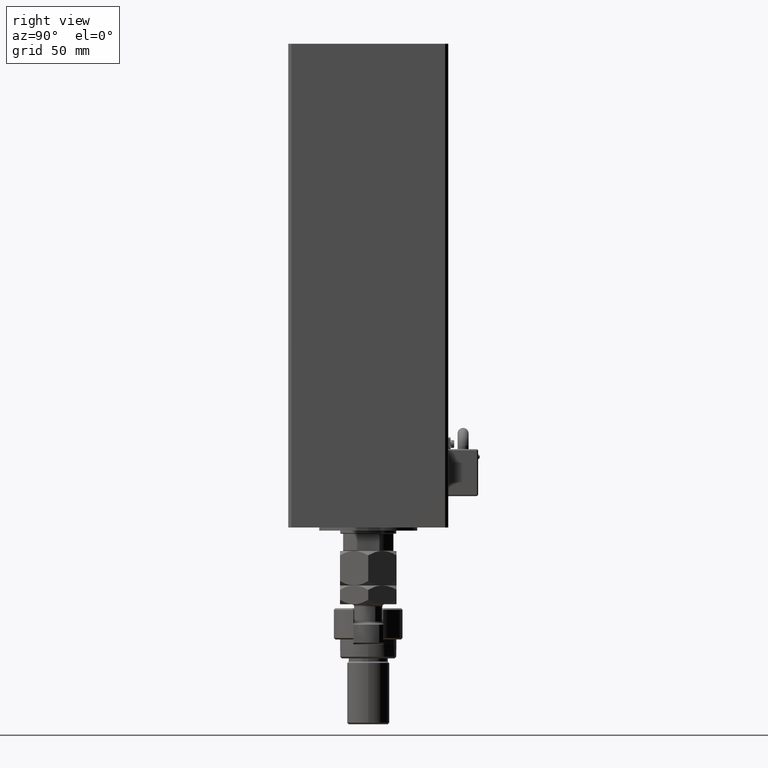
[diagram: clean part render]
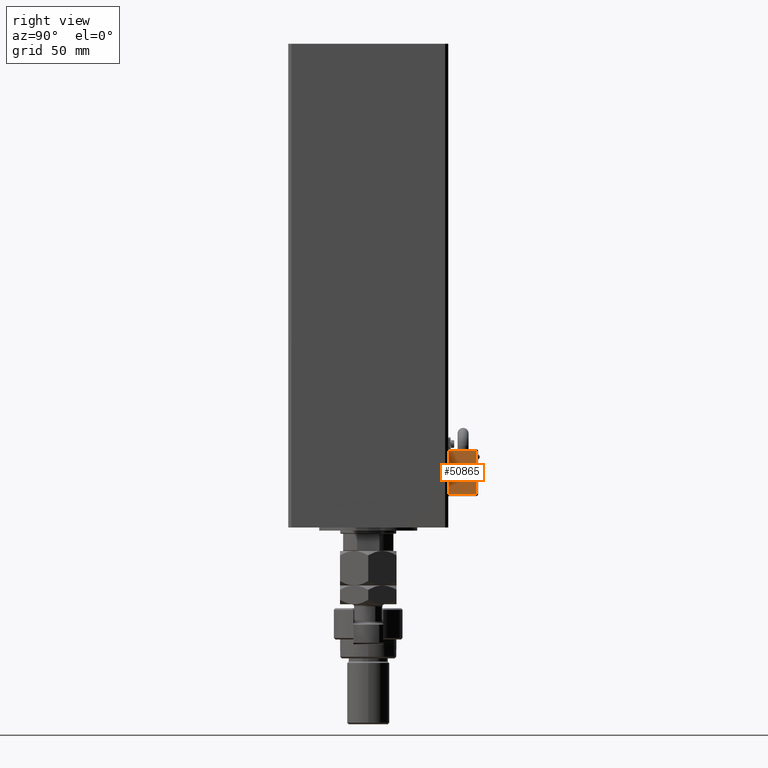
[diagram: same view with one face highlighted and labeled with its STEP entity id]
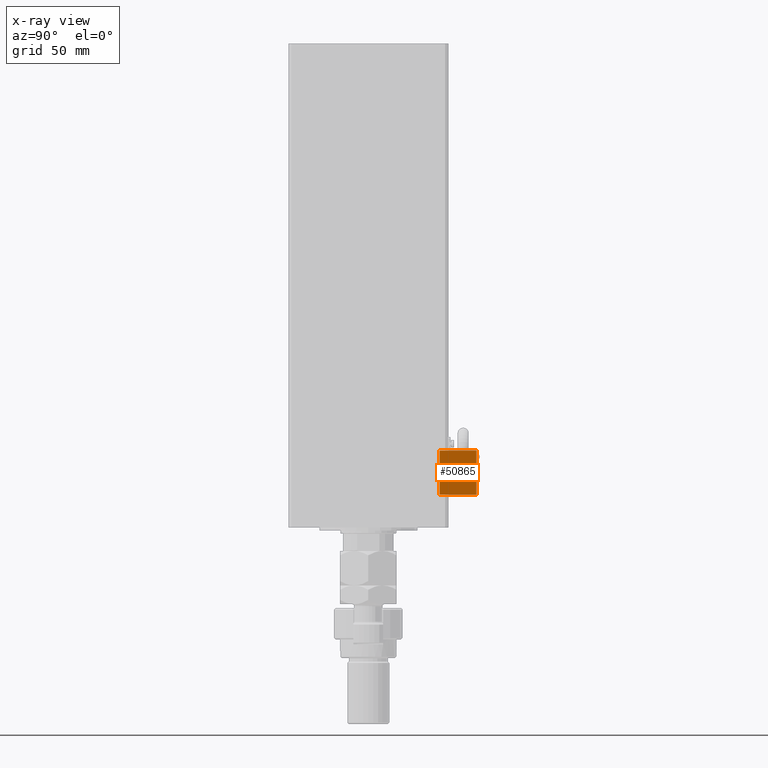
[diagram: x-ray of the same camera — body ghosted, the highlighted face saturated]
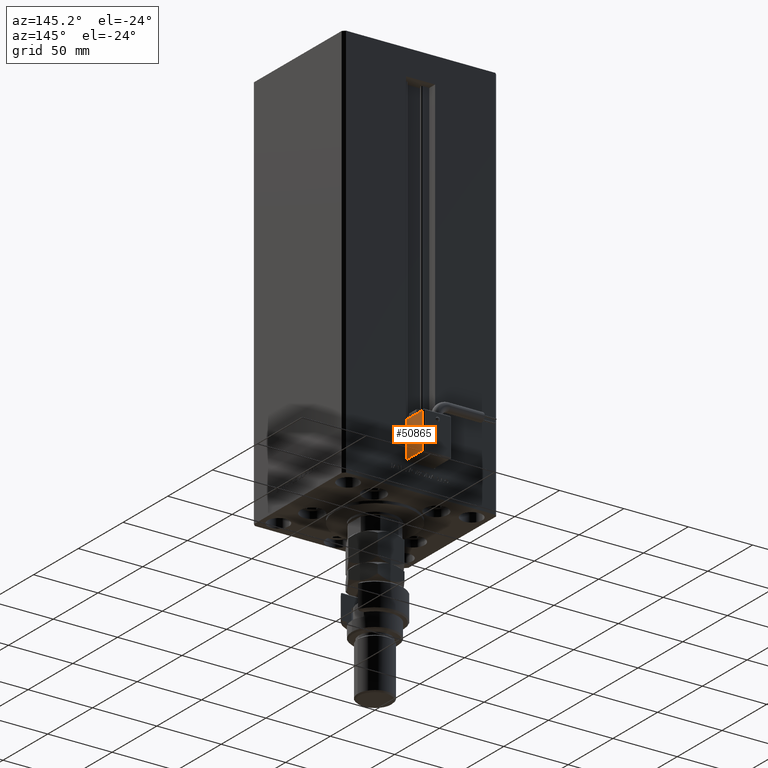
[diagram: same view with one face highlighted and labeled with its STEP entity id]
A machine part, right view. The second image highlights one B-rep face of the part: STEP entity #50865.
The next image is the same camera in x-ray: the body ghosted, the highlighted face saturated — about 0% of this face is hidden behind the body in this view.
A second angle (auxiliary view) of the same face is appended — the face is thin or edge-on in the first view.
In plain terms, the highlighted planar face has unit normal (-1, 0, 0).
Its self-contained STEP definition (entity closure, byte-faithful):
#749 = CARTESIAN_POINT ( 'NONE',  ( -10.80000000000000071, 27.00000000000000000, -55.00000000000000000 ) ) ;
#912 = VECTOR ( 'NONE', #47704, 1000.000000000000000 ) ;
#2271 = EDGE_LOOP ( 'NONE', ( #25443, #6890, #51611, #11787 ) ) ;
#3122 = CARTESIAN_POINT ( 'NONE',  ( -10.80000000000000071, 50.50000000000000000, -54.00000000000000000 ) ) ;
#6890 = ORIENTED_EDGE ( 'NONE', *, *, #9754, .T. ) ;
#9754 = EDGE_CURVE ( 'NONE', #15936, #41450, #52166, .T. ) ;
#10800 = LINE ( 'NONE', #27744, #33085 ) ;
#11218 = LINE ( 'NONE', #53788, #23912 ) ;
#11787 = ORIENTED_EDGE ( 'NONE', *, *, #42108, .T. ) ;
#13810 = VERTEX_POINT ( 'NONE', #36426 ) ;
#14584 = FACE_OUTER_BOUND ( 'NONE', #2271, .T. ) ;
#15094 = EDGE_CURVE ( 'NONE', #13810, #15936, #10800, .T. ) ;
#15936 = VERTEX_POINT ( 'NONE', #24393 ) ;
#16225 = DIRECTION ( 'NONE',  ( 0.000000000000000000, -2.220446049250000002E-16, 1.000000000000000000 ) ) ;
#18269 = DIRECTION ( 'NONE',  ( 3.108624468950000014E-32, -1.000000000000000000, -1.400000000000000069E-16 ) ) ;
#23912 = VECTOR ( 'NONE', #18269, 1000.000000000000000 ) ;
#24393 = CARTESIAN_POINT ( 'NONE',  ( -10.80000000000000071, 50.50000000000000000, -26.00000000000000000 ) ) ;
#25135 = CARTESIAN_POINT ( 'NONE',  ( -10.80000000000000071, 27.00000000000000000, -54.00000000000000000 ) ) ;
#25443 = ORIENTED_EDGE ( 'NONE', *, *, #15094, .T. ) ;
#26479 = VERTEX_POINT ( 'NONE', #25135 ) ;
#27744 = CARTESIAN_POINT ( 'NONE',  ( -10.80000000000000071, 26.00000000000000000, -26.00000000000000000 ) ) ;
#30195 = AXIS2_PLACEMENT_3D ( 'NONE', #48538, #45190, #16225 ) ;
#31544 = PLANE ( 'NONE',  #30195 ) ;
#33085 = VECTOR ( 'NONE', #36661, 1000.000000000000000 ) ;
#36091 = VECTOR ( 'NONE', #52215, 1000.000000000000000 ) ;
#36426 = CARTESIAN_POINT ( 'NONE',  ( -10.80000000000000071, 27.00000000000000000, -26.00000000000000000 ) ) ;
#36661 = DIRECTION ( 'NONE',  ( -3.108624468950000014E-32, 1.000000000000000000, 1.400000000000000069E-16 ) ) ;
#41450 = VERTEX_POINT ( 'NONE', #3122 ) ;
#42108 = EDGE_CURVE ( 'NONE', #26479, #13810, #51659, .T. ) ;
#45190 = DIRECTION ( 'NONE',  ( 1.000000000000000000, 4.930380657629929601E-32, 1.094764425253299406E-47 ) ) ;
#47421 = CARTESIAN_POINT ( 'NONE',  ( -10.80000000000000071, 50.50000000000000000, -55.00000000000000000 ) ) ;
#47704 = DIRECTION ( 'NONE',  ( 2.220446049250000002E-16, 1.200000000000000024E-16, -1.000000000000000000 ) ) ;
#48538 = CARTESIAN_POINT ( 'NONE',  ( -10.80000000000000071, 26.00000000000000000, -55.00000000000000000 ) ) ;
#49632 = EDGE_CURVE ( 'NONE', #41450, #26479, #11218, .T. ) ;
#50865 = ADVANCED_FACE ( 'NONE', ( #14584 ), #31544, .F. ) ;
#51611 = ORIENTED_EDGE ( 'NONE', *, *, #49632, .T. ) ;
#51659 = LINE ( 'NONE', #749, #36091 ) ;
#52166 = LINE ( 'NONE', #47421, #912 ) ;
#52215 = DIRECTION ( 'NONE',  ( -2.220446049250000002E-16, -1.200000000000000024E-16, 1.000000000000000000 ) ) ;
#53788 = CARTESIAN_POINT ( 'NONE',  ( -10.80000000000000071, 26.00000000000000000, -54.00000000000000000 ) ) ;